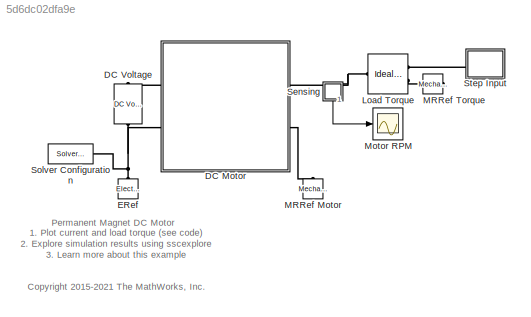
MODEL slx_5d6dc02dfa9e
KIND model
CONFIG AbsTol = 1e-3
CONFIG EnableMultiTasking = on
CONFIG FixedStep = auto
CONFIG MaxStep = 1e-2
CONFIG MinStep = auto
CONFIG RelTol = 1e-3
CONFIG SampleTimeConstraint = Unconstrained
CONFIG SolverName = VariableStepAuto
CONFIG StartTime = 0.0
CONFIG StopTime = 0.2
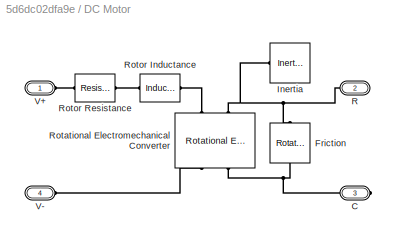
BLOCK [SubSystem] DC Motor
  Ports = [0, 0, 0, 0, 0, 2, 2]
  RequestExecContextInheritance = off
  Tag = PublishSubsystem
BLOCK [PMIOPort] DC Motor/C
  Port = 3
  Side = Right
BLOCK [Reference] DC Motor/Friction  REF=fl_lib/Mechanical/Rotational Elements/Rotational Friction
  NameLocation = right
  Ports = [0, 0, 0, 0, 0, 1, 1]
  SourceBlock = fl_lib/Mechanical/Rotational Elements/Rotational Friction
  SourceProductBaseCode = PW,SS,VE
  SourceType = Rotational Friction
BLOCK [Reference] DC Motor/Inertia  REF=fl_lib/Mechanical/Rotational Elements/Inertia
  NameLocation = top
  Ports = [0, 0, 0, 0, 0, 1]
  SourceBlock = fl_lib/Mechanical/Rotational Elements/Inertia
  SourceProductBaseCode = PW,SS,VE
  SourceType = Inertia
BLOCK [PMIOPort] DC Motor/R
  Port = 2
  Side = Right
BLOCK [Reference] DC Motor/Rotational Electromechanical Converter  REF=fl_lib/Electrical/Electrical Elements/Rotational
Electromechanical
Converter
  NameLocation = left
  Ports = [0, 0, 0, 0, 0, 2, 2]
  SourceBlock = fl_lib/Electrical/Electrical Elements/Rotational\nElectromechanical\nConverter
  SourceProductBaseCode = PW,SS,VE
  SourceType = Rotational\nElectromechanical\nConverter
BLOCK [Reference] DC Motor/Rotor Inductance  REF=fl_lib/Electrical/Electrical Elements/Inductor
  Ports = [0, 0, 0, 0, 0, 1, 1]
  SourceBlock = fl_lib/Electrical/Electrical Elements/Inductor
  SourceProductBaseCode = PW,SS,VE
  SourceType = Inductor
BLOCK [Reference] DC Motor/Rotor Resistance  REF=fl_lib/Electrical/Electrical Elements/Resistor
  Ports = [0, 0, 0, 0, 0, 1, 1]
  SourceBlock = fl_lib/Electrical/Electrical Elements/Resistor
  SourceProductBaseCode = PW,SS,VE
  SourceType = Resistor
  Tag = Factory Generic
BLOCK [PMIOPort] DC Motor/V+
  Side = Left
BLOCK [PMIOPort] DC Motor/V-
  Port = 4
  Side = Left
BLOCK [Reference] DC Voltage  REF=fl_lib/Electrical/Electrical Sources/DC Voltage Source
  NameLocation = left
  Ports = [0, 0, 0, 0, 0, 1, 1]
  SourceBlock = fl_lib/Electrical/Electrical Sources/DC Voltage Source
  SourceProductBaseCode = PW,SS,VE
  SourceType = DC Voltage Source
BLOCK [Reference] ERef  REF=fl_lib/Electrical/Electrical Elements/Electrical Reference
  NameLocation = right
  Ports = [0, 0, 0, 0, 0, 1]
  SourceBlock = fl_lib/Electrical/Electrical Elements/Electrical Reference
  SourceProductBaseCode = PW,SS,VE
  SourceType = Electrical Reference
BLOCK [Reference] Load Torque  REF=fl_lib/Mechanical/Mechanical Sources/Ideal Torque Source
  NameLocation = top
  Ports = [0, 0, 0, 0, 0, 1, 2]
  SourceBlock = fl_lib/Mechanical/Mechanical Sources/Ideal Torque Source
  SourceProductBaseCode = PW,SS,VE
  SourceType = Ideal Torque Source
BLOCK [Reference] MRRef Motor  REF=fl_lib/Mechanical/Rotational Elements/Mechanical
Rotational Reference
  NameLocation = left
  Ports = [0, 0, 0, 0, 0, 1]
  SourceBlock = fl_lib/Mechanical/Rotational Elements/Mechanical\nRotational Reference
  SourceProductBaseCode = PW,SS,VE
  SourceType = Mechanical\nRotational Reference
BLOCK [Reference] MRRef Torque  REF=fl_lib/Mechanical/Rotational Elements/Mechanical
Rotational Reference
  Ports = [0, 0, 0, 0, 0, 1]
  SourceBlock = fl_lib/Mechanical/Rotational Elements/Mechanical\nRotational Reference
  SourceProductBaseCode = PW,SS,VE
  SourceType = Mechanical\nRotational Reference
BLOCK [Scope] Motor RPM
  Floating = off
  NumInputPorts = 1
  Ports = [1]
  ScopeSpecificationString = Simulink.scopes.TimeScopeBlockCfg('CurrentConfiguration', extmgr.ConfigurationSet(extmgr.Configuration('Core','General UI',true),extmgr.Configuration('Core','Source UI',true),extmgr.Configuration('Sources','WiredSimulink',true,'DataLoggingSaveFormat','StructureWithTime','DataLoggingLimitDataPoints',true,'DataLoggingDecimation','1'),extmgr.Configuration('Visuals','Time Domain',true,'SerializedDispl...<+1589ch>
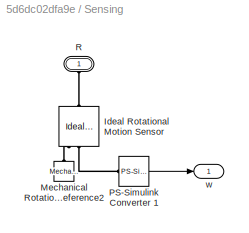
BLOCK [SubSystem] Sensing
  NameLocation = left
  Ports = [0, 1, 0, 0, 0, 1]
  RequestExecContextInheritance = off
BLOCK [Reference] Sensing/Ideal Rotational Motion Sensor  REF=fl_lib/Mechanical/Mechanical Sensors/Ideal Rotational
Motion Sensor
  NameLocation = right
  Ports = [0, 0, 0, 0, 0, 1, 3]
  SourceBlock = fl_lib/Mechanical/Mechanical Sensors/Ideal Rotational\nMotion Sensor
  SourceProductBaseCode = PW,SS,VE
  SourceType = Ideal Rotational\nMotion Sensor
BLOCK [Reference] Sensing/Mechanical Rotational Reference2  REF=fl_lib/Mechanical/Rotational Elements/Mechanical
Rotational Reference
  NameLocation = left
  Ports = [0, 0, 0, 0, 0, 1]
  SourceBlock = fl_lib/Mechanical/Rotational Elements/Mechanical\nRotational Reference
  SourceProductBaseCode = PW,SS,VE
  SourceType = Mechanical\nRotational Reference
BLOCK [Reference] Sensing/PS-Simulink Converter 1  REF=nesl_utility/PS-Simulink
Converter
  Ports = [0, 1, 0, 0, 0, 1]
  SourceBlock = nesl_utility/PS-Simulink\nConverter
  SourceProductBaseCode = SS,PW,VE
  SourceType = PS-Simulink\nConverter
BLOCK [PMIOPort] Sensing/R
  NameLocation = right
  Side = Left
BLOCK [Outport] Sensing/w
  VectorParamsAs1DForOutWhenUnconnected = off
BLOCK [Reference] Solver Configuration  REF=nesl_utility/Solver
Configuration
  Ports = [0, 0, 0, 0, 0, 0, 1]
  SourceBlock = nesl_utility/Solver\nConfiguration
  SourceProductBaseCode = SS,PW,VE
  SourceType = Solver\nConfiguration
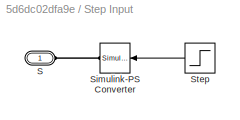
BLOCK [SubSystem] Step Input
  Ports = [0, 0, 0, 0, 0, 1]
  RequestExecContextInheritance = off
BLOCK [PMIOPort] Step Input/S
  Side = Left
BLOCK [Reference] Step Input/Simulink-PS Converter  REF=nesl_utility/Simulink-PS
Converter
  NameLocation = top
  Ports = [1, 0, 0, 0, 0, 0, 1]
  SourceBlock = nesl_utility/Simulink-PS\nConverter
  SourceProductBaseCode = SS,PW,VE
  SourceType = Simulink-PS\nConverter
BLOCK [Step] Step Input/Step
  After = -0.24e-3
  SampleTime = 0
  Time = 0.1
ANNOTATION (root): 1. Plot current and load torque ( see code ) 2. Explore simulation results using sscexplore 3. Learn more about this example
ANNOTATION (root): <copyright redacted>
ANNOTATION (root): Permanent Magnet DC Motor
LINE Sensing/PS-Simulink Converter 1:1 -> Sensing/w:1
LINE Sensing:1 -> Motor RPM:1
LINE Step Input/Step:1 -> Step Input/Simulink-PS Converter:1
PNET net1: DC Motor/C:RConn1 -- DC Motor/Friction:RConn1 -- DC Motor/Rotational Electromechanical Converter:RConn2
PNET net2: DC Motor/Friction:LConn1 -- DC Motor/Inertia:LConn1 -- DC Motor/R:RConn1 -- DC Motor/Rotational Electromechanical Converter:LConn2
PLINE DC Motor/Rotational Electromechanical Converter:LConn1 -- DC Motor/Rotor Inductance:RConn1
PLINE DC Motor/Rotational Electromechanical Converter:RConn1 -- DC Motor/V-:RConn1
PLINE DC Motor/Rotor Inductance:LConn1 -- DC Motor/Rotor Resistance:RConn1
PLINE DC Motor/Rotor Resistance:LConn1 -- DC Motor/V+:RConn1
PLINE DC Motor:LConn1 -- DC Voltage:LConn1
PNET net3: DC Motor:LConn2 -- DC Voltage:RConn1 -- ERef:LConn1 -- Solver Configuration:RConn1
PNET net4: DC Motor:RConn1 -- Load Torque:LConn1 -- Sensing:LConn1
PLINE DC Motor:RConn2 -- MRRef Motor:LConn1
PLINE Load Torque:RConn1 -- Step Input:LConn1
PLINE Load Torque:RConn2 -- MRRef Torque:LConn1
PLINE Sensing/Ideal Rotational Motion Sensor:LConn1 -- Sensing/R:RConn1
PLINE Sensing/Ideal Rotational Motion Sensor:RConn1 -- Sensing/Mechanical Rotational Reference2:LConn1
PLINE Sensing/Ideal Rotational Motion Sensor:RConn2 -- Sensing/PS-Simulink Converter 1:LConn1
PLINE Step Input/S:RConn1 -- Step Input/Simulink-PS Converter:RConn1
note: PNET lines group multi-terminal physical nets as a canonical sorted terminal list (undirected conserving connections); 2-terminal nets keep the pairwise PLINE form
